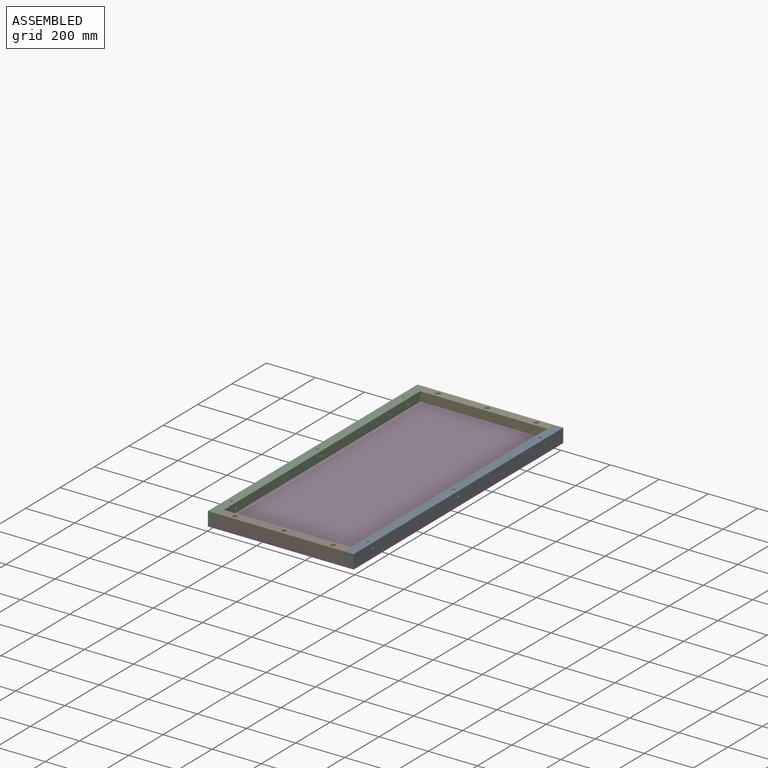
[diagram: assembled view]
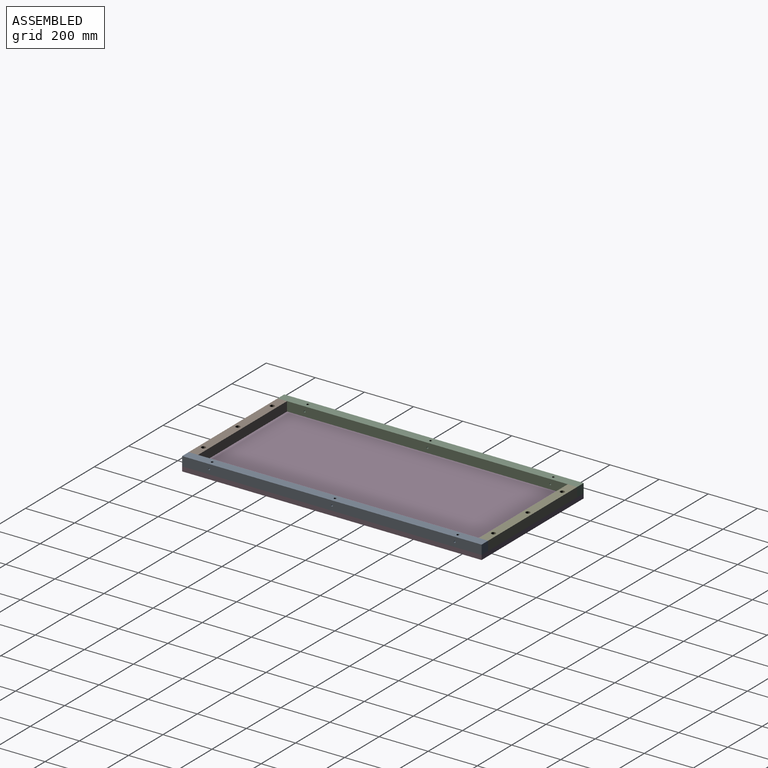
[diagram: assembled view, second angle]
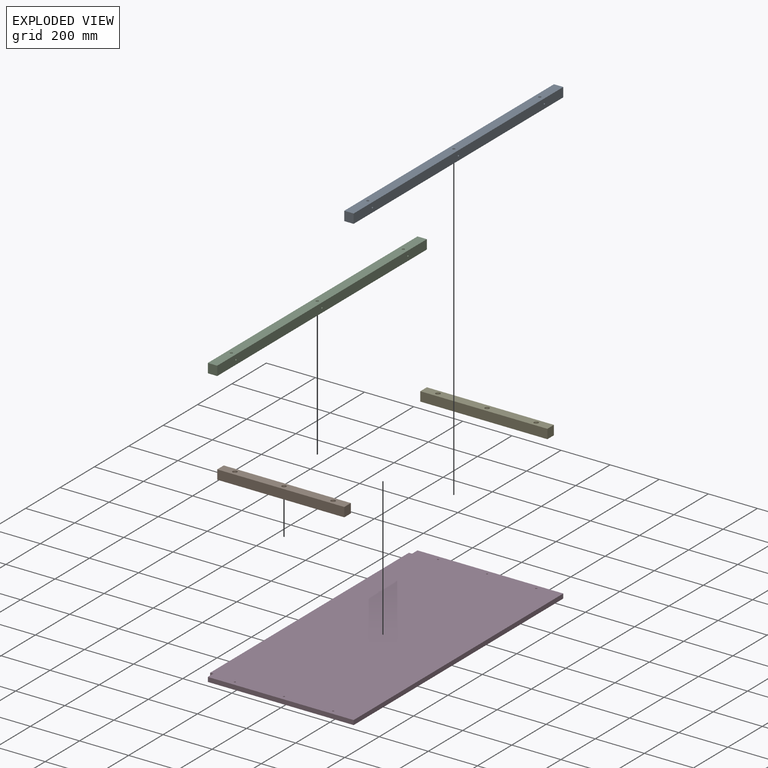
[diagram: exploded view]
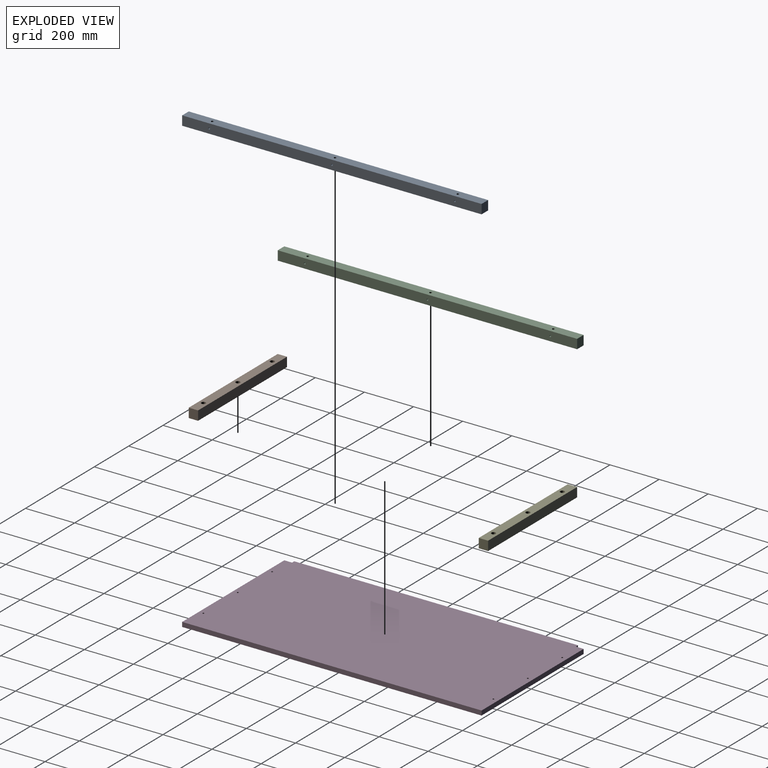
[diagram: exploded view, second angle]
ASSEMBLY  parts=5 mates=8
PART A: 15 faces, bbox 38.1x1219.2x38.1 mm
  f0: cylinder r=5.16mm len=38.1mm, axis (0,0,1), area 1148.3mm2, adj f4,f6,f13,f14
  f1: cylinder r=5.16mm len=38.1mm, axis (0,0,1), area 1148.3mm2, adj f4,f6,f11,f12
  f2: cylinder r=5.16mm len=38.1mm, axis (0,0,1), area 1148.3mm2, adj f4,f6,f9,f10
  f3: plane 1219.2x38.1mm, normal (1,0,0), area 46331.5mm2, adj f4,f6,f7,f8,f10,f12,f14
  f4: plane 1219.2x38.1mm, normal (0,0,1), area 46200.9mm2, adj f0,f1,f2,f3,f5,f7,f8
  f5: plane 1219.2x38.1mm, normal (-1,0,0), area 46331.5mm2, adj f4,f6,f7,f8,f9,f11,f13
  f6: plane 1219.2x38.1mm, normal (0,0,-1), area 46200.9mm2, adj f0,f1,f2,f3,f5,f7,f8
  f7: plane 38.1x38.1mm, normal (0,-1,0), area 1451.6mm2, adj f3,f4,f5,f6
  f8: plane 38.1x38.1mm, normal (0,1,0), area 1451.6mm2, adj f3,f4,f5,f6
  f9: cylinder r=3.57mm len=15.33mm, axis (1,0,0), area 327mm2, adj f2,f5
  f10: cylinder r=3.57mm len=15.33mm, axis (1,0,0), area 327mm2, adj f2,f3
  f11: cylinder r=3.57mm len=15.33mm, axis (1,0,0), area 327mm2, adj f1,f5
  f12: cylinder r=3.57mm len=15.33mm, axis (1,0,0), area 327mm2, adj f1,f3
  f13: cylinder r=3.57mm len=15.33mm, axis (1,0,0), area 327mm2, adj f0,f5
  f14: cylinder r=3.57mm len=15.33mm, axis (1,0,0), area 327mm2, adj f0,f3
PART B: 15 faces, bbox 38.1x517.5x38.1 mm
  f0: plane 517.53x38.1mm, normal (1,0,0), area 19717.7mm2, adj f1,f3,f4,f5
  f1: plane 517.53x38.1mm, normal (0,0,1), area 18954.3mm2, adj f0,f2,f4,f5,f8,f11,f14
  f2: plane 517.53x38.1mm, normal (-1,0,0), area 19717.7mm2, adj f1,f3,f4,f5
  f3: plane 517.53x38.1mm, normal (0,0,-1), area 19597.7mm2, adj f0,f2,f4,f5,f6,f9,f12
  f4: plane 38.1x38.1mm, normal (0,-1,0), area 1451.6mm2, adj f0,f1,f2,f3
  f5: plane 38.1x38.1mm, normal (0,1,0), area 1451.6mm2, adj f0,f1,f2,f3
  f6: cylinder r=3.57mm len=12.7mm, axis (0,0,1), area 284.8mm2, adj f3,f7
  f7: plane 18x18mm, normal (0,0,1), area 214.5mm2, adj f6,f8
  f8: cylinder r=9mm len=25.4mm, axis (0,0,1), area 1436.3mm2, adj f1,f7
  f9: cylinder r=3.57mm len=12.7mm, axis (0,0,1), area 284.8mm2, adj f3,f10
  f10: plane 18x18mm, normal (0,0,1), area 214.5mm2, adj f9,f11
  f11: cylinder r=9mm len=25.4mm, axis (0,0,1), area 1436.3mm2, adj f1,f10
  f12: cylinder r=3.57mm len=12.7mm, axis (0,0,1), area 284.8mm2, adj f3,f13
  f13: plane 18x18mm, normal (0,0,1), area 214.5mm2, adj f12,f14
  f14: cylinder r=9mm len=25.4mm, axis (0,0,1), area 1436.3mm2, adj f1,f13
PART C: same geometry as A
PART D: 16 faces, bbox 606.4x1219.2x18.5 mm
  f0: plane 31.75x18.5mm, normal (-1,0,0), area 587.4mm2, adj f1,f7,f8,f9
  f1: plane 593.73x18.5mm, normal (0,-1,0), area 10983.9mm2, adj f0,f2,f8,f9
  f2: plane 1219.2x18.5mm, normal (1,0,0), area 22555.2mm2, adj f1,f3,f8,f9
  f3: plane 593.73x18.5mm, normal (0,1,0), area 10983.9mm2, adj f2,f4,f8,f9
  f4: plane 31.75x18.5mm, normal (-1,0,0), area 587.4mm2, adj f3,f5,f8,f9
  f5: plane 18.5x12.7mm, normal (0,1,0), area 235mm2, adj f4,f6,f8,f9
  f6: plane 1155.7x18.5mm, normal (-1,0,0), area 21380.5mm2, adj f5,f7,f8,f9
  f7: plane 18.5x12.7mm, normal (0,-1,0), area 235mm2, adj f0,f6,f8,f9
  f8: plane 1219.2x606.43mm, normal (0,0,1), area 738307.4mm2, adj f0,f1,f2,f3,f4,f5,f6,f7
  f9: plane 1219.2x606.43mm, normal (0,0,-1), area 738307.4mm2, adj f0,f1,f2,f3,f4,f5,f6,f7
  f10: cylinder r=3.57mm len=18.5mm, axis (0,0,1), area 414.8mm2, adj f8,f9
  f11: cylinder r=3.57mm len=18.5mm, axis (0,0,1), area 414.8mm2, adj f8,f9
  f12: cylinder r=3.57mm len=18.5mm, axis (0,0,1), area 414.8mm2, adj f8,f9
  f13: cylinder r=3.57mm len=18.5mm, axis (0,0,1), area 414.8mm2, adj f8,f9
  f14: cylinder r=3.57mm len=18.5mm, axis (0,0,1), area 414.8mm2, adj f8,f9
  f15: cylinder r=3.57mm len=18.5mm, axis (0,0,1), area 414.8mm2, adj f8,f9
PART E: same geometry as B
PLACE A t=(283.84,609.6,37.55)mm
PLACE B rot(axis=(0,0,1),90deg) t=(-252.73,-590.55,37.55)mm
PLACE C t=(-271.78,609.6,37.55)mm
PLACE D t=(-0.32,0,0)mm
PLACE E rot(axis=(0,0,1),90deg) t=(-252.73,590.55,37.55)mm
MATE planar D.f8 <-> A.f1  axis (0,0,1) through (0,0,18.5)mm
MATE planar D.f3 <-> A.f8  axis (0,1,0) through (6.03,609.6,9.25)mm
MATE fastened D.f12 <-> E.f9  axis (0,0,1) through (6.03,590.55,18.5)mm
MATE fastened D.f15 <-> B.f9  axis (0,0,1) through (6.03,-590.55,18.5)mm
MATE planar D.f8 <-> C.f1  axis (0,0,1) through (0,0,18.5)mm
MATE planar C.f8 <-> E.f0  axis (0,1,0) through (-271.78,609.6,37.55)mm
MATE planar D.f2 <-> A.f11  axis (1,0,0) through (302.89,0,9.25)mm
MATE planar E.f5 <-> C.f11  axis (-1,0,0) through (-252.73,590.55,37.55)mm
